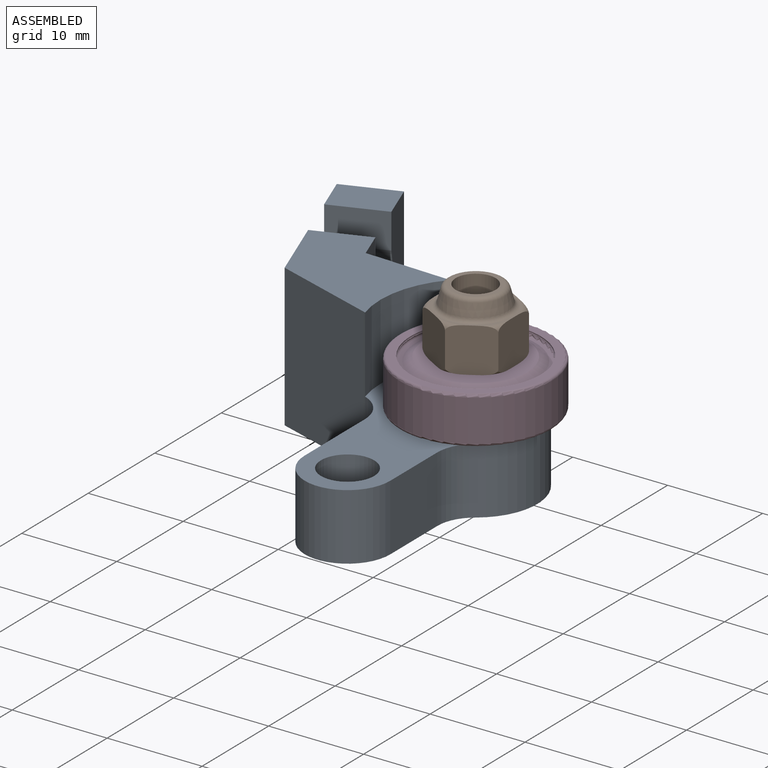
[diagram: assembled view]
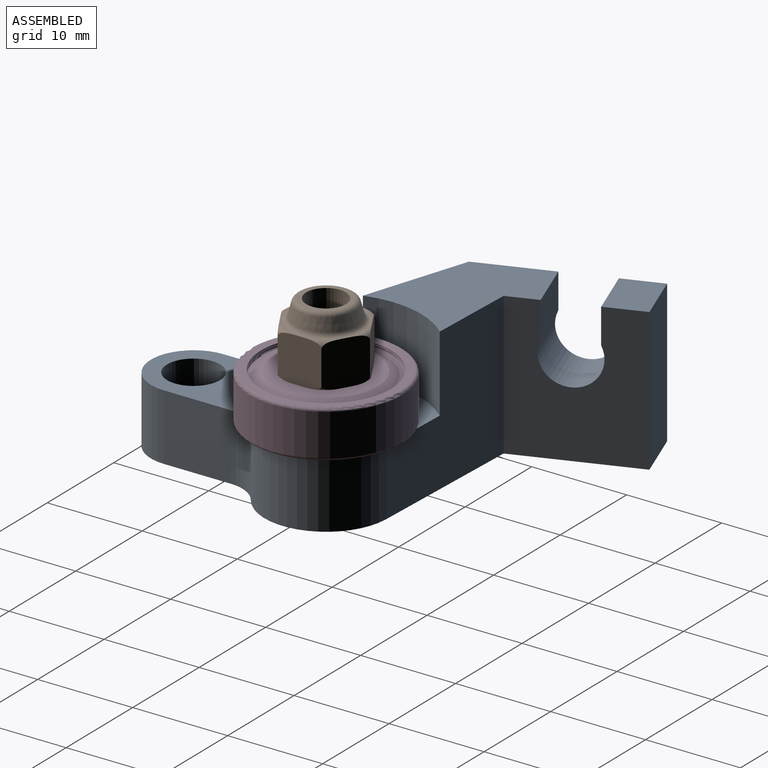
[diagram: assembled view, second angle]
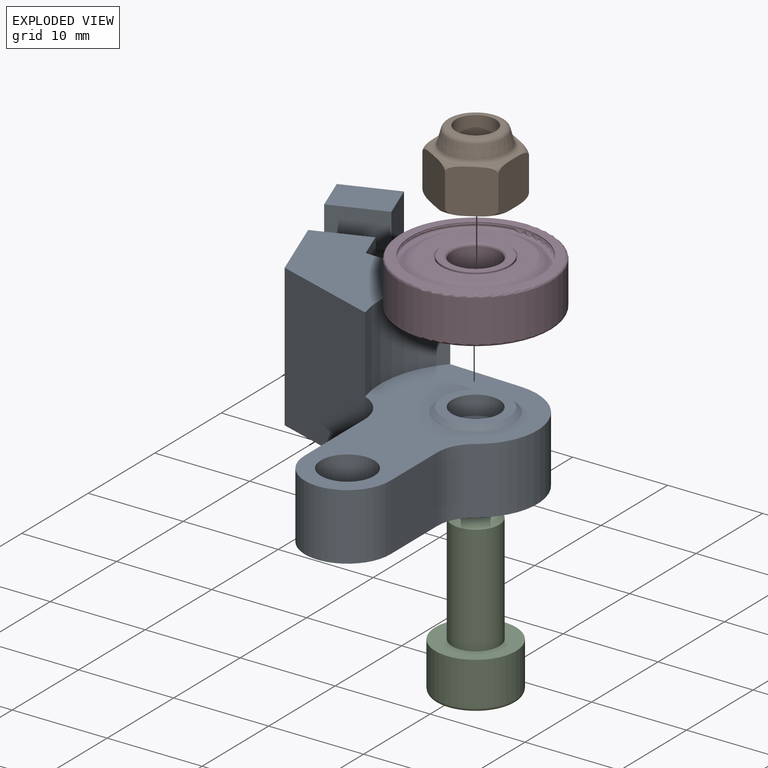
[diagram: exploded view]
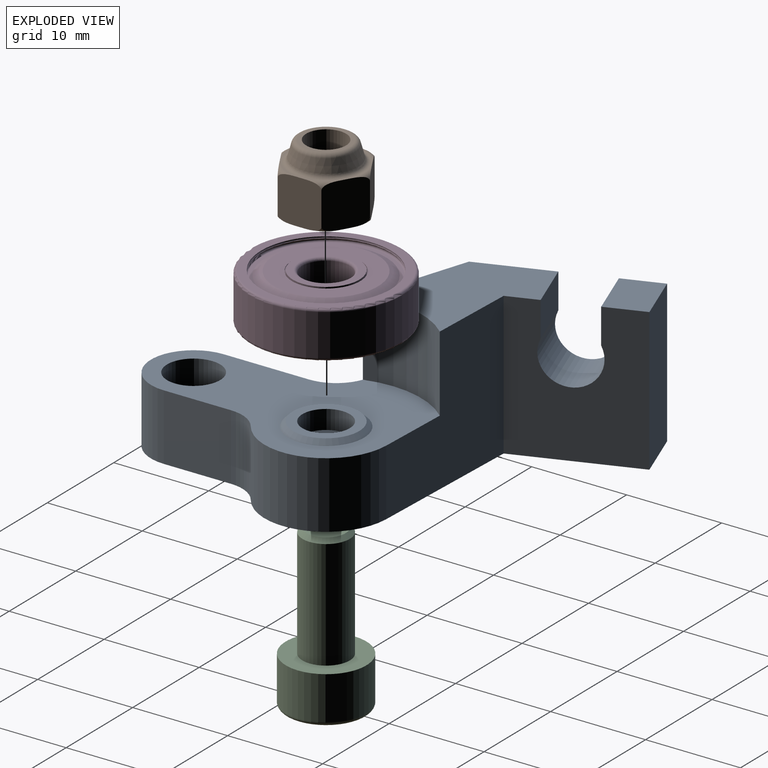
[diagram: exploded view, second angle]
ASSEMBLY  parts=4 mates=3
PART A: 28 faces, bbox 33.2x39.5x15 mm
  f0: plane 15.9x13.07mm, normal (0,0,1), area 111.8mm2, adj f1,f6,f7,f8,f9,f14,f24
  f1: plane 16.58x15mm, normal (-0.94,-0.35,0), area 223.4mm2, adj f0,f6,f10,f11,f12,f24,f25,f26
  f2: plane 9x7mm, normal (-1,0,0), area 63mm2, adj f3,f7,f12,f13
  f3: cylinder r=4.5mm len=9mm, axis (0,0,-1), area 99mm2, adj f2,f4,f12,f13
  f4: plane 7.08x7mm, normal (1,0,0), area 49.6mm2, adj f3,f12,f13,f27
  f5: cylinder r=6.5mm len=11.83mm, axis (0,0,-1), area 113.6mm2, adj f8,f12,f13,f27
  f6: plane 15x10.72mm, normal (-0.31,-0.95,0), area 168.8mm2, adj f0,f1,f7,f12
  f7: cylinder r=4.1mm len=15mm, axis (0,0,-1), area 38mm2, adj f0,f2,f6,f12,f13,f14
  f8: plane 16.79x15mm, normal (0.04,1,0), area 190.7mm2, adj f0,f5,f9,f12,f13,f14
  f9: plane 15x12.2mm, normal (0.94,0.35,0), area 153.3mm2, adj f0,f8,f10,f11,f12,f24,f25,f26
  f10: plane 15x5.63mm, normal (-0.35,0.94,0), area 90mm2, adj f1,f9,f11,f12
  f11: plane 7.12x6.11mm, normal (0,0,1), area 25.8mm2, adj f1,f9,f10,f25
  f12: plane 39.5x33.18mm, normal (0,0,-1), area 398.5mm2, adj f1,f2,f3,f4,f5,f6,f7,f8
  f13: plane 26.97x16.55mm, normal (0,0,1), area 225.3mm2, adj f2,f3,f4,f5,f7,f8,f14,f17
  f14: cylinder r=10.05mm len=9.64mm, axis (0,0,1), area 82.7mm2, adj f0,f7,f8,f13
  f15: cylinder r=1.6mm len=4mm, axis (0,0,1), area 40.2mm2, adj f12,f16
  f16: plane 5.6x5.6mm, normal (0,0,1), area 16.6mm2, adj f15,f17
  f17: cylinder r=2.8mm len=5.6mm, axis (0,0,1), area 52.8mm2, adj f13,f16
  f18: cylinder r=4.5mm len=9mm, axis (0,0,-1), area 141.4mm2, adj f12,f19
  f19: plane 9x9mm, normal (0,0,-1), area 63.6mm2, adj f18
  f20: plane 7x7mm, normal (0,0,1), area 18.8mm2, adj f21,f23
  f21: cylinder r=2.5mm len=5mm, axis (0,0,1), area 31.4mm2, adj f20,f22
  f22: plane 5x5mm, normal (0,0,1), area 19.6mm2, adj f21
  f23: cone r=3.5mm half-angle=45deg, axis (0,0,-1), area 16.7mm2, adj f13,f20
  f24: plane 5.63x3.69mm, normal (-0.35,0.94,0), area 22.2mm2, adj f0,f1,f9,f26
  f25: plane 5.63x3.69mm, normal (0.35,-0.94,0), area 22.2mm2, adj f1,f9,f11,f26
  f26: cylinder r=3mm len=7.71mm, axis (-0.94,-0.35,0), area 72.8mm2, adj f1,f9,f24,f25
  f27: cylinder r=4mm len=7mm, axis (0,0,-1), area 27mm2, adj f4,f5,f12,f13
PART B: 15 faces, bbox 10x10x6.8 mm
  f0: plane 7.99x7.99mm, normal (0,0,1), area 2.9mm2, adj f1,f12
  f1: torus R=4mm, axis (0,0,-1), area 5.9mm2, adj f0,f2,f3,f4,f5,f6,f7
  f2: plane 4.7x4mm, normal (0.5,0.87,0), area 20.9mm2, adj f1,f3,f7,f9
  f3: plane 4.7x4.62mm, normal (1,0,0), area 20.9mm2, adj f1,f2,f4,f9
  f4: plane 4.7x4mm, normal (0.5,-0.87,0), area 20.9mm2, adj f1,f3,f5,f9
  f5: plane 4.7x4mm, normal (-0.5,-0.87,0), area 20.9mm2, adj f1,f4,f6,f9
  f6: plane 4.7x4.62mm, normal (-1,0,0), area 20.9mm2, adj f1,f5,f7,f9
  f7: plane 4.7x4mm, normal (-0.5,0.87,0), area 20.9mm2, adj f1,f2,f6,f9
  f8: plane 7.99x7.99mm, normal (0,0,-1), area 36.3mm2, adj f9,f14
  f9: torus R=4mm, axis (0,0,-1), area 5.9mm2, adj f2,f3,f4,f5,f6,f7,f8
  f10: cone r=3.47mm half-angle=15deg, axis (0,0,-1), area 27.5mm2, adj f12,f13
  f11: plane 5.02x5.02mm, normal (0,0,1), area 5.9mm2, adj f13,f14
  f12: torus R=3.88mm, axis (0,0,-1), area 15.5mm2, adj f0,f10
  f13: torus R=2.51mm, axis (0,0,1), area 12.1mm2, adj f10,f11
  f14: cylinder r=2.1mm len=6.8mm, axis (0,0,-1), area 89.7mm2, adj f8,f11
PART C: 14 faces, bbox 9.2x9.2x17 mm
  f0: plane 7.65x7.65mm, normal (0,0,-1), area 31.4mm2, adj f3,f4,f5,f6,f7,f8,f9
  f1: cylinder r=4.25mm len=8.5mm, axis (0,0,1), area 122.2mm2, adj f2,f3
  f2: plane 8.5x8.5mm, normal (0,0,1), area 37.1mm2, adj f1,f11
  f3: torus R=3.82mm, axis (0,0,-1), area 17.2mm2, adj f0,f1
  f4: plane 2.5x2.36mm, normal (-1,0,0), area 5.9mm2, adj f0,f5,f9,f10
  f5: plane 2.5x2.05mm, normal (-0.5,-0.87,0), area 5.9mm2, adj f0,f4,f6,f10
  f6: plane 2.5x2.05mm, normal (0.5,-0.87,0), area 5.9mm2, adj f0,f5,f7,f10
  f7: plane 2.5x2.36mm, normal (1,0,0), area 5.9mm2, adj f0,f6,f8,f10
  f8: plane 2.5x2.05mm, normal (0.5,0.87,0), area 5.9mm2, adj f0,f7,f9,f10
  f9: plane 2.5x2.05mm, normal (-0.5,0.87,0), area 5.9mm2, adj f0,f4,f8,f10
  f10: plane 4.73x4.1mm, normal (0,0,-1), area 14.5mm2, adj f4,f5,f6,f7,f8,f9
  f11: cylinder r=2.5mm len=11.57mm, axis (0,0,-1), area 181.7mm2, adj f2,f13
  f12: plane 4.13x4.13mm, normal (0,0,1), area 13.4mm2, adj f13
  f13: cone r=2.07mm half-angle=45deg, axis (0,0,-1), area 8.8mm2, adj f11,f12
PART D: 42 faces, bbox 5x17.3x17.3 mm
  f0: cylinder r=6.53mm len=13.07mm, axis (-1,0,0), area 24.2mm2, adj f17,f18
  f1: cylinder r=6.53mm len=13.07mm, axis (-1,0,0), area 24.2mm2, adj f32,f33
  f2: plane 15.4x15.4mm, normal (1,0,0), area 38.8mm2, adj f3,f8
  f3: torus R=7.7mm, axis (-1,0,0), area 23.4mm2, adj f2,f4
  f4: cylinder r=8mm len=16mm, axis (-1,0,0), area 221.2mm2, adj f3,f5
  f5: torus R=7.7mm, axis (-1,0,0), area 23.4mm2, adj f4,f6
  f6: plane 15.4x15.4mm, normal (-1,0,0), area 38.8mm2, adj f5,f7
  f7: cylinder r=6.85mm len=13.7mm, axis (-1,0,0), area 5.3mm2, adj f6,f34
  f8: cylinder r=6.85mm len=13.7mm, axis (1,0,0), area 5.3mm2, adj f2,f9
  f9: cone r=6.84mm half-angle=25deg, axis (1,0,0), area 2.8mm2, adj f8,f10
  f10: torus R=6.74mm, axis (1,0,0), area 21.6mm2, adj f9,f11
  f11: plane 13.47x13.47mm, normal (1,0,0), area 15.8mm2, adj f10,f12
  f12: cone r=5.48mm half-angle=63.6deg, axis (-1,0,0), area 36.3mm2, adj f11,f13
  f13: plane 10.95x10.95mm, normal (1,0,0), area 53.4mm2, adj f12,f14
  f14: cylinder r=3.61mm len=7.21mm, axis (1,0,0), area 1.5mm2, adj f13,f15
  f15: plane 10.95x10.95mm, normal (-1,0,0), area 53.4mm2, adj f14,f16
  f16: cone r=5.48mm half-angle=63.6deg, axis (-1,0,0), area 36.3mm2, adj f15,f17
  f17: plane 13.07x13.07mm, normal (-1,0,0), area 7.3mm2, adj f0,f16
  f18: torus R=5.25mm, axis (1,0,0), area 93.8mm2, adj f0,f19
  f19: cylinder r=3.97mm len=7.93mm, axis (-1,0,0), area 14.7mm2, adj f18,f29
  f20: plane 6.99x6.99mm, normal (1,0,0), area 13.8mm2, adj f25,f30
  f21: cylinder r=3.97mm len=7.93mm, axis (-1,0,0), area 14.7mm2, adj f26,f32
  f22: plane 6.99x6.99mm, normal (-1,0,0), area 13.8mm2, adj f23,f28
  f23: torus R=2.8mm, axis (-1,0,0), area 7.7mm2, adj f22,f24
  f24: cylinder r=2.5mm len=5mm, axis (-1,0,0), area 69.1mm2, adj f23,f25
  f25: torus R=2.8mm, axis (-1,0,0), area 7.7mm2, adj f20,f24
  f26: plane 7.93x7.93mm, normal (-1,0,0), area 2.4mm2, adj f21,f27
  f27: cone r=3.5mm half-angle=75deg, axis (1,0,0), area 8.9mm2, adj f26,f28
  f28: cylinder r=3.5mm len=6.99mm, axis (-1,0,0), area 11mm2, adj f22,f27
  f29: plane 7.93x7.93mm, normal (1,0,0), area 2.4mm2, adj f19,f31
  f30: cylinder r=3.5mm len=6.99mm, axis (1,0,0), area 11mm2, adj f20,f31
  f31: cone r=3.5mm half-angle=75deg, axis (-1,0,0), area 8.9mm2, adj f29,f30
  f32: torus R=5.25mm, axis (1,0,0), area 93.8mm2, adj f1,f21
  f33: plane 13.07x13.07mm, normal (1,0,0), area 7.3mm2, adj f1,f41
  f34: cone r=6.84mm half-angle=25deg, axis (-1,0,0), area 2.8mm2, adj f7,f35
  f35: torus R=6.74mm, axis (-1,0,0), area 21.6mm2, adj f34,f36
  f36: plane 13.47x13.47mm, normal (-1,0,0), area 15.8mm2, adj f35,f37
  f37: cone r=5.48mm half-angle=63.6deg, axis (1,0,0), area 36.3mm2, adj f36,f38
  f38: plane 10.95x10.95mm, normal (-1,0,0), area 53.4mm2, adj f37,f39
  f39: cylinder r=3.61mm len=7.21mm, axis (-1,0,0), area 1.5mm2, adj f38,f40
  f40: plane 10.95x10.95mm, normal (1,0,0), area 53.4mm2, adj f39,f41
  f41: cone r=5.48mm half-angle=63.6deg, axis (1,0,0), area 36.3mm2, adj f33,f40
PLACE A t=(-8.36,-5.48,-5.52)mm
PLACE B t=(-8.36,-5.48,6.88)mm
PLACE C t=(-8.36,-5.48,-0.52)mm
PLACE D rot(axis=(0,1,0),90deg) t=(-8.36,-5.48,6.88)mm
MATE fastened B.f1 <-> D.f0  axis (0,0,-1) through (-8.36,-5.48,6.88)mm
MATE fastened C.f1 <-> A.f5  axis (0,0,1) through (-8.36,-5.48,-0.52)mm
MATE fastened D.f31 <-> A.f5  axis (0,0,-1) through (-8.36,-5.48,1.98)mm
